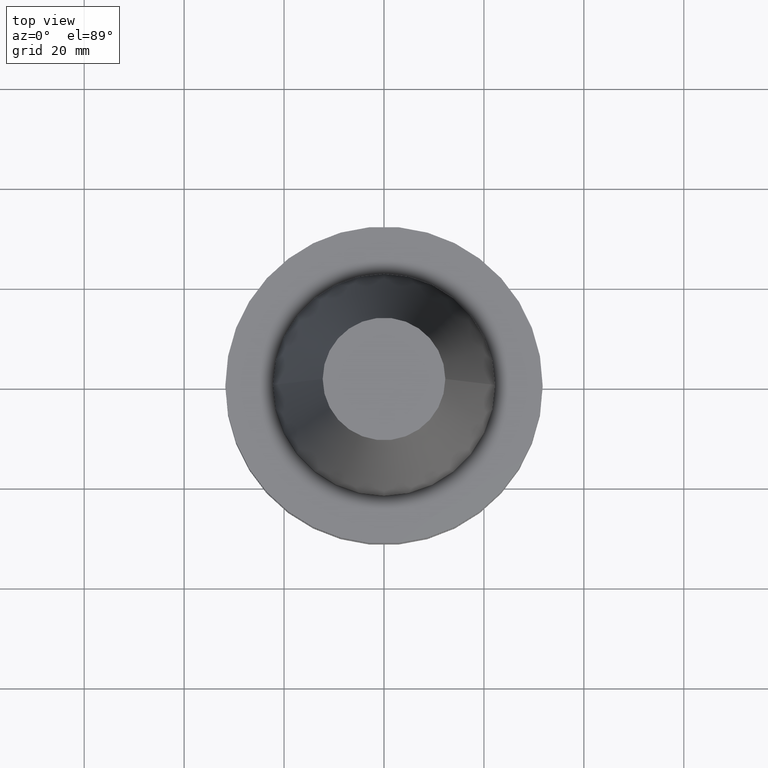
[diagram: clean part render]
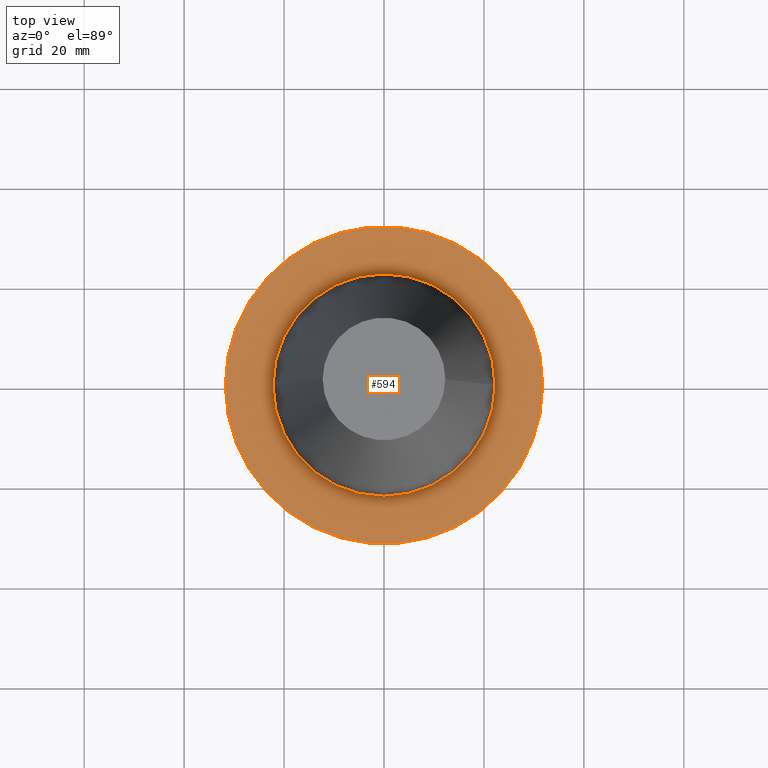
[diagram: same view with one face highlighted and labeled with its STEP entity id]
A machine part, top view. The second image highlights one B-rep face of the part: STEP entity #594.
In plain terms, the highlighted planar face has unit normal (0, 0, -1).
Its self-contained STEP definition (entity closure, byte-faithful):
#14 = DIRECTION ( 'NONE',  ( 0.000000000000000000, 0.000000000000000000, -1.000000000000000000 ) ) ;
#28 = CARTESIAN_POINT ( 'NONE',  ( 0.000000000000000000, 0.000000000000000000, -3.174999999999997158 ) ) ;
#59 = VERTEX_POINT ( 'NONE', #586 ) ;
#83 = DIRECTION ( 'NONE',  ( 1.000000000000000000, 0.000000000000000000, 0.000000000000000000 ) ) ;
#98 = DIRECTION ( 'NONE',  ( -0.000000000000000000, -0.000000000000000000, 1.000000000000000000 ) ) ;
#111 = VERTEX_POINT ( 'NONE', #516 ) ;
#113 = AXIS2_PLACEMENT_3D ( 'NONE', #241, #14, #606 ) ;
#147 = CARTESIAN_POINT ( 'NONE',  ( -22.22500000000000142, 2.721777511104992849E-15, -3.174999999999997158 ) ) ;
#156 = EDGE_LOOP ( 'NONE', ( #697, #212 ) ) ;
#168 = DIRECTION ( 'NONE',  ( 1.000000000000000000, 0.000000000000000000, 0.000000000000000000 ) ) ;
#192 = EDGE_CURVE ( 'NONE', #59, #111, #432, .T. ) ;
#199 = EDGE_CURVE ( 'NONE', #111, #59, #409, .T. ) ;
#212 = ORIENTED_EDGE ( 'NONE', *, *, #499, .F. ) ;
#241 = CARTESIAN_POINT ( 'NONE',  ( 0.000000000000000000, 31.75000000000000000, -3.174999999999993605 ) ) ;
#243 = VERTEX_POINT ( 'NONE', #249 ) ;
#249 = CARTESIAN_POINT ( 'NONE',  ( 22.22500000000000142, 0.000000000000000000, -3.174999999999997158 ) ) ;
#267 = CARTESIAN_POINT ( 'NONE',  ( 0.000000000000000000, 0.000000000000000000, -3.174999999999997158 ) ) ;
#283 = CIRCLE ( 'NONE', #459, 22.22500000000000142 ) ;
#331 = VERTEX_POINT ( 'NONE', #147 ) ;
#350 = EDGE_CURVE ( 'NONE', #243, #331, #283, .T. ) ;
#357 = FACE_OUTER_BOUND ( 'NONE', #442, .T. ) ;
#370 = DIRECTION ( 'NONE',  ( -0.000000000000000000, -0.000000000000000000, 1.000000000000000000 ) ) ;
#375 = DIRECTION ( 'NONE',  ( -0.000000000000000000, -0.000000000000000000, 1.000000000000000000 ) ) ;
#394 = ORIENTED_EDGE ( 'NONE', *, *, #199, .T. ) ;
#395 = ORIENTED_EDGE ( 'NONE', *, *, #192, .T. ) ;
#409 = CIRCLE ( 'NONE', #589, 31.75000000000000000 ) ;
#432 = CIRCLE ( 'NONE', #743, 31.75000000000000000 ) ;
#442 = EDGE_LOOP ( 'NONE', ( #394, #395 ) ) ;
#455 = AXIS2_PLACEMENT_3D ( 'NONE', #267, #375, #561 ) ;
#459 = AXIS2_PLACEMENT_3D ( 'NONE', #28, #98, #168 ) ;
#499 = EDGE_CURVE ( 'NONE', #331, #243, #547, .T. ) ;
#516 = CARTESIAN_POINT ( 'NONE',  ( 31.75000000000000000, 0.000000000000000000, -3.174999999999997158 ) ) ;
#547 = CIRCLE ( 'NONE', #455, 22.22500000000000142 ) ;
#550 = FACE_BOUND ( 'NONE', #156, .T. ) ;
#558 = CARTESIAN_POINT ( 'NONE',  ( 0.000000000000000000, 0.000000000000000000, -3.174999999999997158 ) ) ;
#561 = DIRECTION ( 'NONE',  ( 1.000000000000000000, 0.000000000000000000, 0.000000000000000000 ) ) ;
#562 = DIRECTION ( 'NONE',  ( 1.000000000000000000, 0.000000000000000000, 0.000000000000000000 ) ) ;
#586 = CARTESIAN_POINT ( 'NONE',  ( -31.75000000000000000, 3.888253587292846476E-15, -3.174999999999997158 ) ) ;
#589 = AXIS2_PLACEMENT_3D ( 'NONE', #734, #370, #562 ) ;
#594 = ADVANCED_FACE ( 'NONE', ( #550, #357 ), #665, .F. ) ;
#606 = DIRECTION ( 'NONE',  ( -1.000000000000000000, 0.000000000000000000, -0.000000000000000000 ) ) ;
#665 = PLANE ( 'NONE',  #113 ) ;
#697 = ORIENTED_EDGE ( 'NONE', *, *, #350, .F. ) ;
#734 = CARTESIAN_POINT ( 'NONE',  ( 0.000000000000000000, 0.000000000000000000, -3.174999999999997158 ) ) ;
#736 = DIRECTION ( 'NONE',  ( -0.000000000000000000, -0.000000000000000000, 1.000000000000000000 ) ) ;
#743 = AXIS2_PLACEMENT_3D ( 'NONE', #558, #736, #83 ) ;